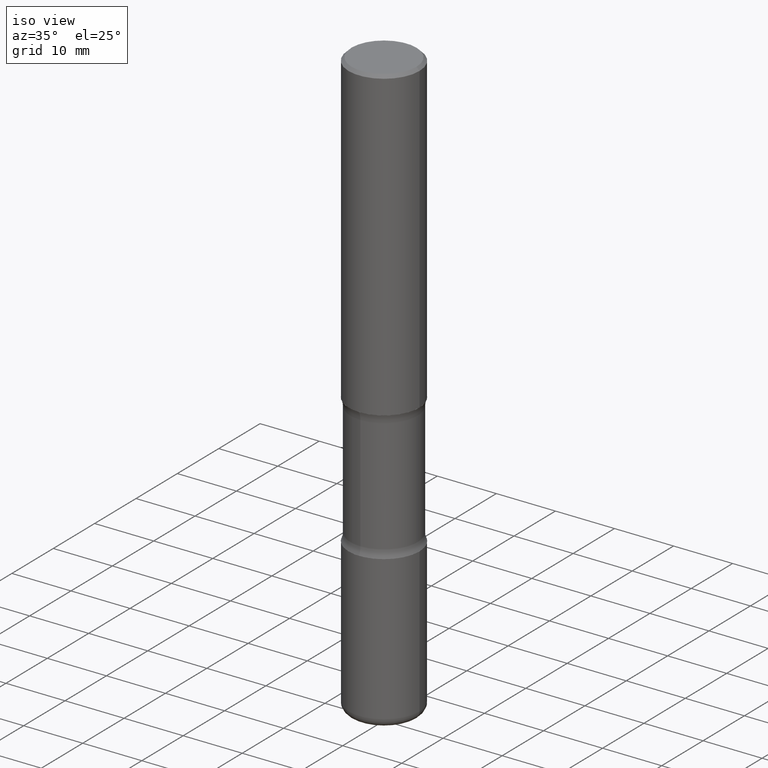
[diagram: clean part render]
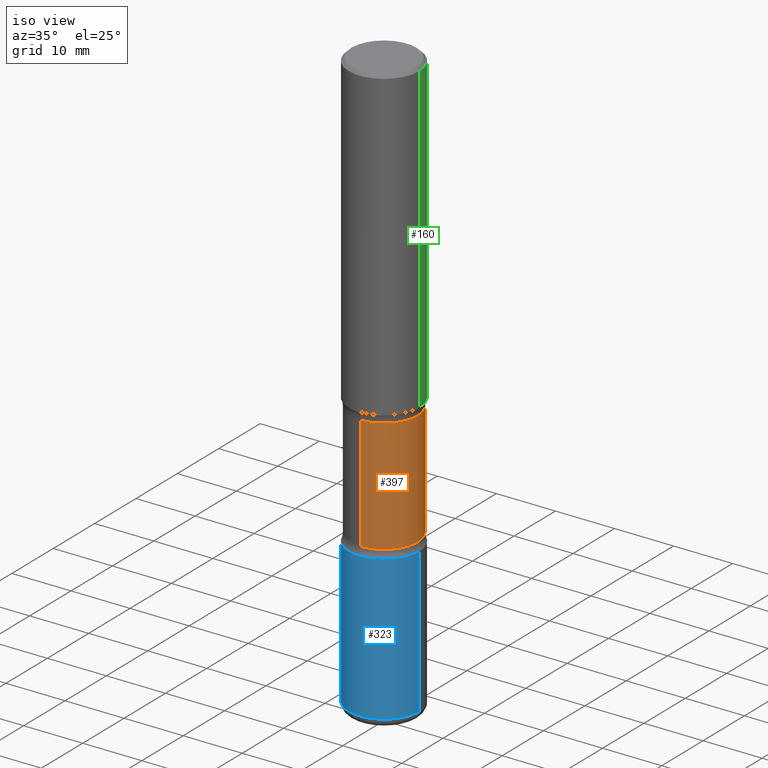
[diagram: same view with three faces highlighted in distinct colors, each labeled with its STEP entity id]
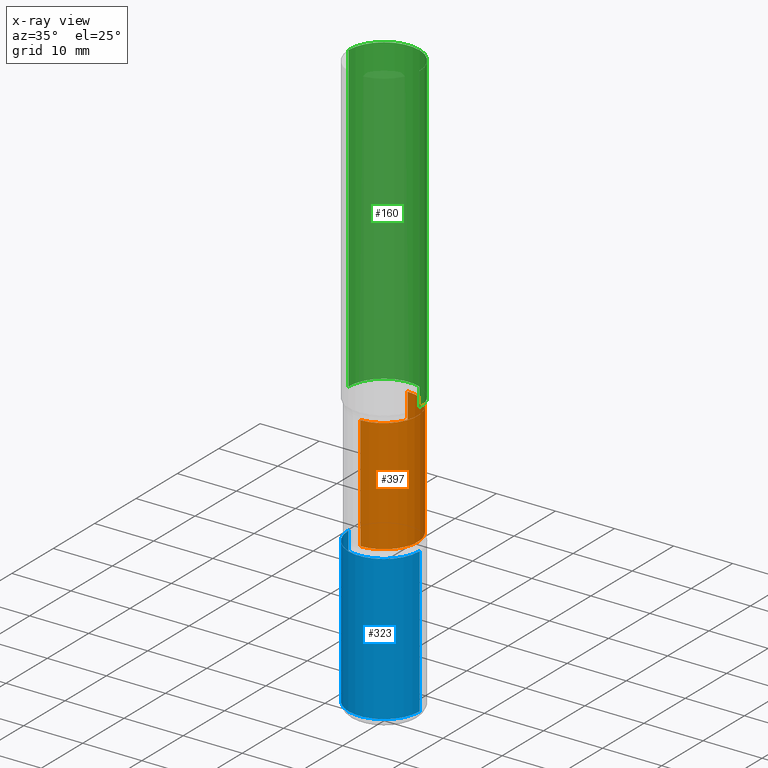
[diagram: x-ray of the same camera — body ghosted, the three highlighted faces saturated]
A machine part, iso view with three faces highlighted in distinct colors.
The next image is the same camera in x-ray (body ghosted, the three faces saturated) — at least one of them is partly hidden behind the body in this view.
Their STEP definitions:

[orange] entity #397 — the highlighted cylindrical surface (partial cylindrical patch) has radius 5.6998 mm, axis along (0, -0, -1).
#25 = EDGE_CURVE ( 'NONE', #480, #351, #337, .T. ) ;
#31 = CARTESIAN_POINT ( 'NONE',  ( -1.579972688886734072E-15, -0.2244000000000073713, -2.100216601173594544 ) ) ;
#39 = LINE ( 'NONE', #117, #99 ) ;
#54 = CARTESIAN_POINT ( 'NONE',  ( 9.710227154047748282E-29, -1.362793696358492956E-14, -3.937000000000000277 ) ) ;
#71 = DIRECTION ( 'NONE',  ( 2.525985086076564115E-29, -3.376177443336566513E-15, -1.000000000000000000 ) ) ;
#73 = EDGE_LOOP ( 'NONE', ( #291, #401, #296, #444 ) ) ;
#82 = AXIS2_PLACEMENT_3D ( 'NONE', #317, #482, #95 ) ;
#89 = CIRCLE ( 'NONE', #387, 0.2243999999999999606 ) ;
#90 = EDGE_CURVE ( 'NONE', #351, #204, #89, .T. ) ;
#95 = DIRECTION ( 'NONE',  ( 6.982962677686265922E-15, 1.000000000000000000, -3.652203200085913934E-15 ) ) ;
#99 = VECTOR ( 'NONE', #212, 39.37007874015748143 ) ;
#117 = CARTESIAN_POINT ( 'NONE',  ( -1.539495750699834052E-15, -0.2244000000000135608, -3.936999999999999389 ) ) ;
#130 = FACE_OUTER_BOUND ( 'NONE', #73, .T. ) ;
#204 = VERTEX_POINT ( 'NONE', #430 ) ;
#209 = VECTOR ( 'NONE', #71, 39.37007874015748143 ) ;
#211 = CIRCLE ( 'NONE', #82, 0.2243999999999999606 ) ;
#212 = DIRECTION ( 'NONE',  ( 2.525985086076564115E-29, -3.376177443336566513E-15, -1.000000000000000000 ) ) ;
#217 = EDGE_CURVE ( 'NONE', #513, #204, #39, .T. ) ;
#238 = CARTESIAN_POINT ( 'NONE',  ( 1.566976824872848494E-15, 0.2243999999999925499, -2.100216601173596320 ) ) ;
#285 = DIRECTION ( 'NONE',  ( 6.982962677686265922E-15, 1.000000000000000000, -2.434802133390609421E-15 ) ) ;
#290 = AXIS2_PLACEMENT_3D ( 'NONE', #54, #312, #479 ) ;
#291 = ORIENTED_EDGE ( 'NONE', *, *, #407, .T. ) ;
#296 = ORIENTED_EDGE ( 'NONE', *, *, #90, .F. ) ;
#312 = DIRECTION ( 'NONE',  ( 2.525985086076564115E-29, -3.376177443336566513E-15, -1.000000000000000000 ) ) ;
#317 = CARTESIAN_POINT ( 'NONE',  ( 5.070539682259229331E-29, -7.426630284172150130E-15, -2.100216601173595432 ) ) ;
#337 = LINE ( 'NONE', #423, #209 ) ;
#351 = VERTEX_POINT ( 'NONE', #442 ) ;
#353 = CYLINDRICAL_SURFACE ( 'NONE', #290, 0.2243999999999999329 ) ;
#387 = AXIS2_PLACEMENT_3D ( 'NONE', #415, #418, #285 ) ;
#397 = ADVANCED_FACE ( 'NONE', ( #130 ), #353, .T. ) ;
#401 = ORIENTED_EDGE ( 'NONE', *, *, #217, .T. ) ;
#407 = EDGE_CURVE ( 'NONE', #480, #513, #211, .T. ) ;
#415 = CARTESIAN_POINT ( 'NONE',  ( 6.990709676060807691E-29, -9.993088279580958225E-15, -2.860383398826405354 ) ) ;
#418 = DIRECTION ( 'NONE',  ( 2.525985086076564115E-29, -3.376177443336566513E-15, -1.000000000000000000 ) ) ;
#423 = CARTESIAN_POINT ( 'NONE',  ( 1.566976824872894642E-15, 0.2243999999999863049, -3.937000000000000721 ) ) ;
#430 = CARTESIAN_POINT ( 'NONE',  ( -1.579972688886713168E-15, -0.2244000000000099804, -2.860383398826404466 ) ) ;
#442 = CARTESIAN_POINT ( 'NONE',  ( 1.566976824872867821E-15, 0.2243999999999899686, -2.860383398826405799 ) ) ;
#444 = ORIENTED_EDGE ( 'NONE', *, *, #25, .F. ) ;
#479 = DIRECTION ( 'NONE',  ( 6.982962677686265922E-15, 1.000000000000000000, -2.434802133390609815E-15 ) ) ;
#480 = VERTEX_POINT ( 'NONE', #238 ) ;
#482 = DIRECTION ( 'NONE',  ( 2.525985086076564115E-29, -3.376177443336566513E-15, -1.000000000000000000 ) ) ;
#513 = VERTEX_POINT ( 'NONE', #31 ) ;

[blue] entity #323 — the highlighted cylindrical surface (partial cylindrical patch) has radius 5.9995 mm, axis along (-0, 0, 1).
#7 = DIRECTION ( 'NONE',  ( -2.445468806185136597E-29, 3.491481338843145583E-15, 1.000000000000000000 ) ) ;
#8 = CYLINDRICAL_SURFACE ( 'NONE', #249, 0.2362000000000001598 ) ;
#15 = VERTEX_POINT ( 'NONE', #552 ) ;
#30 = EDGE_LOOP ( 'NONE', ( #66, #240, #243, #499 ) ) ;
#66 = ORIENTED_EDGE ( 'NONE', *, *, #69, .F. ) ;
#69 = EDGE_CURVE ( 'NONE', #269, #526, #76, .T. ) ;
#76 = LINE ( 'NONE', #545, #142 ) ;
#77 = CARTESIAN_POINT ( 'NONE',  ( 0.2362000000000001321, -1.182145751705511899E-14, -2.913400000000000212 ) ) ;
#126 = DIRECTION ( 'NONE',  ( 1.000000000000000000, -6.982962677686266711E-15, 0.000000000000000000 ) ) ;
#139 = DIRECTION ( 'NONE',  ( 1.000000000000000000, -6.982962677686266711E-15, 4.876176775795936353E-29 ) ) ;
#142 = VECTOR ( 'NONE', #505, 39.37007874015748143 ) ;
#143 = CARTESIAN_POINT ( 'NONE',  ( -0.2362000000000001321, -1.017754666637736977E-14, -2.913400000000000212 ) ) ;
#177 = LINE ( 'NONE', #346, #463 ) ;
#215 = CARTESIAN_POINT ( 'NONE',  ( -0.2362000000000000766, -1.186131354203447347E-14, -3.877899999999999014 ) ) ;
#240 = ORIENTED_EDGE ( 'NONE', *, *, #246, .T. ) ;
#243 = ORIENTED_EDGE ( 'NONE', *, *, #273, .T. ) ;
#246 = EDGE_CURVE ( 'NONE', #269, #15, #313, .T. ) ;
#249 = AXIS2_PLACEMENT_3D ( 'NONE', #532, #7, #139 ) ;
#260 = DIRECTION ( 'NONE',  ( -2.445468806185136597E-29, 3.491481338843145583E-15, 1.000000000000000000 ) ) ;
#269 = VERTEX_POINT ( 'NONE', #215 ) ;
#273 = EDGE_CURVE ( 'NONE', #15, #280, #177, .T. ) ;
#280 = VERTEX_POINT ( 'NONE', #77 ) ;
#304 = EDGE_CURVE ( 'NONE', #526, #280, #356, .T. ) ;
#313 = CIRCLE ( 'NONE', #452, 0.2362000000000002153 ) ;
#319 = FACE_OUTER_BOUND ( 'NONE', #30, .T. ) ;
#322 = DIRECTION ( 'NONE',  ( -2.445468806185136597E-29, 3.491481338843145583E-15, 1.000000000000000000 ) ) ;
#323 = ADVANCED_FACE ( 'NONE', ( #319 ), #8, .T. ) ;
#346 = CARTESIAN_POINT ( 'NONE',  ( 0.2362000000000001598, -1.649375784469497314E-15, 1.151752954443000929E-29 ) ) ;
#356 = CIRCLE ( 'NONE', #470, 0.2362000000000001321 ) ;
#437 = CARTESIAN_POINT ( 'NONE',  ( 7.124628819939777829E-29, -1.017208173258562247E-14, -2.913400000000000212 ) ) ;
#452 = AXIS2_PLACEMENT_3D ( 'NONE', #469, #260, #126 ) ;
#463 = VECTOR ( 'NONE', #467, 39.37007874015748143 ) ;
#467 = DIRECTION ( 'NONE',  ( -2.445468806185136877E-29, 3.491481338843145188E-15, 1.000000000000000000 ) ) ;
#469 = CARTESIAN_POINT ( 'NONE',  ( 9.483283483505337853E-29, -1.353961548389983144E-14, -3.877899999999999014 ) ) ;
#470 = AXIS2_PLACEMENT_3D ( 'NONE', #437, #322, #534 ) ;
#499 = ORIENTED_EDGE ( 'NONE', *, *, #304, .F. ) ;
#505 = DIRECTION ( 'NONE',  ( -2.445468806185136877E-29, 3.491481338843145188E-15, 1.000000000000000000 ) ) ;
#526 = VERTEX_POINT ( 'NONE', #143 ) ;
#532 = CARTESIAN_POINT ( 'NONE',  ( 0.000000000000000000, 0.000000000000000000, 0.000000000000000000 ) ) ;
#534 = DIRECTION ( 'NONE',  ( 1.000000000000000000, -6.982962677686269077E-15, 0.000000000000000000 ) ) ;
#545 = CARTESIAN_POINT ( 'NONE',  ( -0.2362000000000001598, 1.678301941865357775E-15, -1.161852468318209598E-29 ) ) ;
#552 = CARTESIAN_POINT ( 'NONE',  ( 0.2362000000000000766, -1.518899126836932954E-14, -3.877899999999999014 ) ) ;

[green] entity #160 — the highlighted cylindrical surface (partial cylindrical patch) has radius 5.9995 mm, axis along (-0, 0, 1).
#1 = CARTESIAN_POINT ( 'NONE',  ( -0.2362000000000001598, -1.930493169962915017E-15, -2.047200000000000131 ) ) ;
#21 = ORIENTED_EDGE ( 'NONE', *, *, #328, .T. ) ;
#45 = DIRECTION ( 'NONE',  ( -2.445468806185136597E-29, 3.491481338843145583E-15, 1.000000000000000000 ) ) ;
#64 = EDGE_LOOP ( 'NONE', ( #21, #466, #535, #102 ) ) ;
#68 = VERTEX_POINT ( 'NONE', #282 ) ;
#70 = DIRECTION ( 'NONE',  ( 1.000000000000000000, -6.982962677686267499E-15, 0.000000000000000000 ) ) ;
#84 = EDGE_CURVE ( 'NONE', #68, #225, #445, .T. ) ;
#86 = CYLINDRICAL_SURFACE ( 'NONE', #277, 0.2361999999999999933 ) ;
#91 = VECTOR ( 'NONE', #136, 39.37007874015748143 ) ;
#102 = ORIENTED_EDGE ( 'NONE', *, *, #538, .F. ) ;
#108 = VECTOR ( 'NONE', #420, 39.37007874015748143 ) ;
#122 = DIRECTION ( 'NONE',  ( 1.000000000000000000, -6.982962677686266711E-15, 4.876176775795936353E-29 ) ) ;
#123 = CIRCLE ( 'NONE', #201, 0.2362000000000001321 ) ;
#128 = CARTESIAN_POINT ( 'NONE',  ( -0.2361999999999999933, 1.678301941865356591E-15, -1.161852468318208757E-29 ) ) ;
#136 = DIRECTION ( 'NONE',  ( -2.445468806185136877E-29, 3.491481338843145188E-15, 1.000000000000000000 ) ) ;
#160 = ADVANCED_FACE ( 'NONE', ( #168 ), #86, .T. ) ;
#161 = CARTESIAN_POINT ( 'NONE',  ( 0.2362000000000001321, -8.797136381349186305E-15, -2.047200000000000131 ) ) ;
#162 = VERTEX_POINT ( 'NONE', #1 ) ;
#168 = FACE_OUTER_BOUND ( 'NONE', #64, .T. ) ;
#176 = CARTESIAN_POINT ( 'NONE',  ( 5.006363740022212241E-29, -7.147760596879688202E-15, -2.047200000000000131 ) ) ;
#178 = LINE ( 'NONE', #128, #91 ) ;
#191 = LINE ( 'NONE', #409, #108 ) ;
#201 = AXIS2_PLACEMENT_3D ( 'NONE', #176, #486, #222 ) ;
#222 = DIRECTION ( 'NONE',  ( 1.000000000000000000, -6.982962677686269077E-15, 0.000000000000000000 ) ) ;
#225 = VERTEX_POINT ( 'NONE', #433 ) ;
#254 = CARTESIAN_POINT ( 'NONE',  ( 0.000000000000000000, 0.000000000000000000, 0.000000000000000000 ) ) ;
#256 = AXIS2_PLACEMENT_3D ( 'NONE', #451, #542, #70 ) ;
#277 = AXIS2_PLACEMENT_3D ( 'NONE', #254, #45, #122 ) ;
#282 = CARTESIAN_POINT ( 'NONE',  ( 0.2361999999999998823, -1.690279253850498179E-15, -0.02000000000000006981 ) ) ;
#328 = EDGE_CURVE ( 'NONE', #483, #162, #123, .T. ) ;
#391 = EDGE_CURVE ( 'NONE', #162, #225, #178, .T. ) ;
#409 = CARTESIAN_POINT ( 'NONE',  ( 0.2361999999999999933, -1.649375784469496131E-15, 1.151752954443000088E-29 ) ) ;
#420 = DIRECTION ( 'NONE',  ( -2.445468806185136877E-29, 3.491481338843145188E-15, 1.000000000000000000 ) ) ;
#433 = CARTESIAN_POINT ( 'NONE',  ( -0.2361999999999998823, 1.579546157692632438E-15, -0.02000000000000006981 ) ) ;
#445 = CIRCLE ( 'NONE', #256, 0.2361999999999998823 ) ;
#451 = CARTESIAN_POINT ( 'NONE',  ( 4.890937612370289799E-31, -6.982962677686315028E-17, -0.02000000000000006981 ) ) ;
#466 = ORIENTED_EDGE ( 'NONE', *, *, #391, .T. ) ;
#483 = VERTEX_POINT ( 'NONE', #161 ) ;
#486 = DIRECTION ( 'NONE',  ( -2.445468806185136597E-29, 3.491481338843145583E-15, 1.000000000000000000 ) ) ;
#535 = ORIENTED_EDGE ( 'NONE', *, *, #84, .F. ) ;
#538 = EDGE_CURVE ( 'NONE', #483, #68, #191, .T. ) ;
#542 = DIRECTION ( 'NONE',  ( -2.445468806185136597E-29, 3.491481338843145583E-15, 1.000000000000000000 ) ) ;